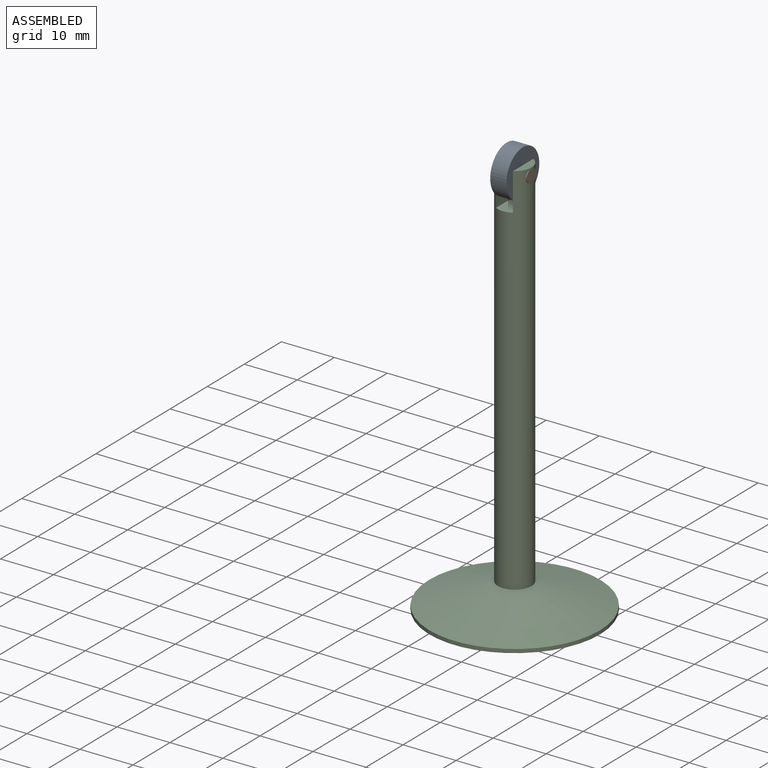
[diagram: assembled view]
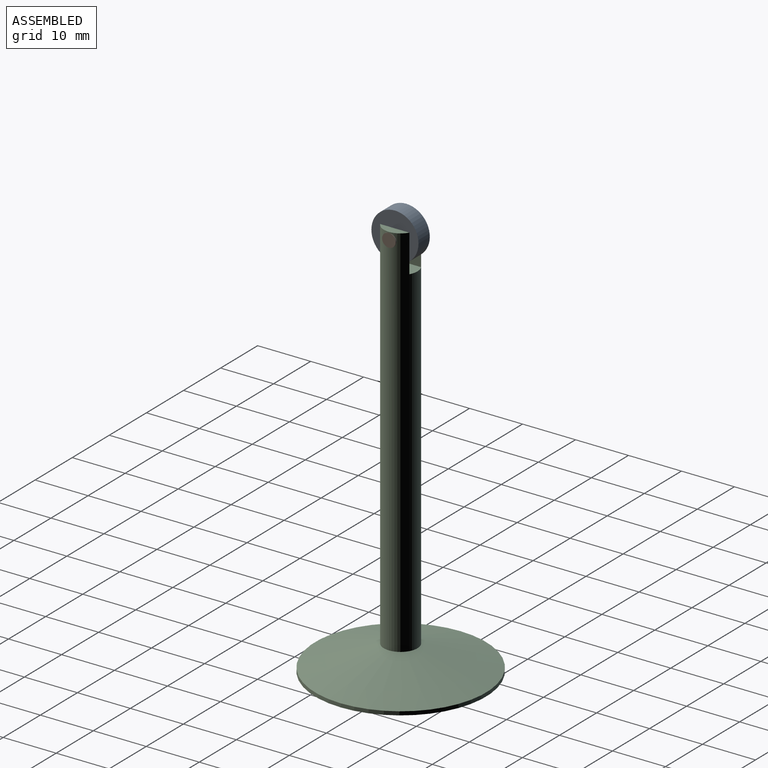
[diagram: assembled view, second angle]
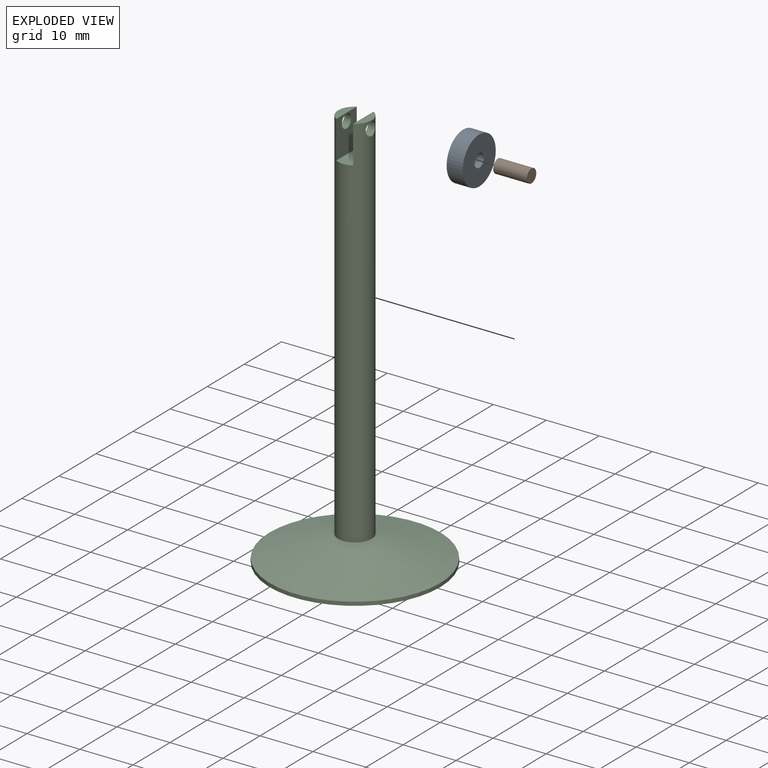
[diagram: exploded view]
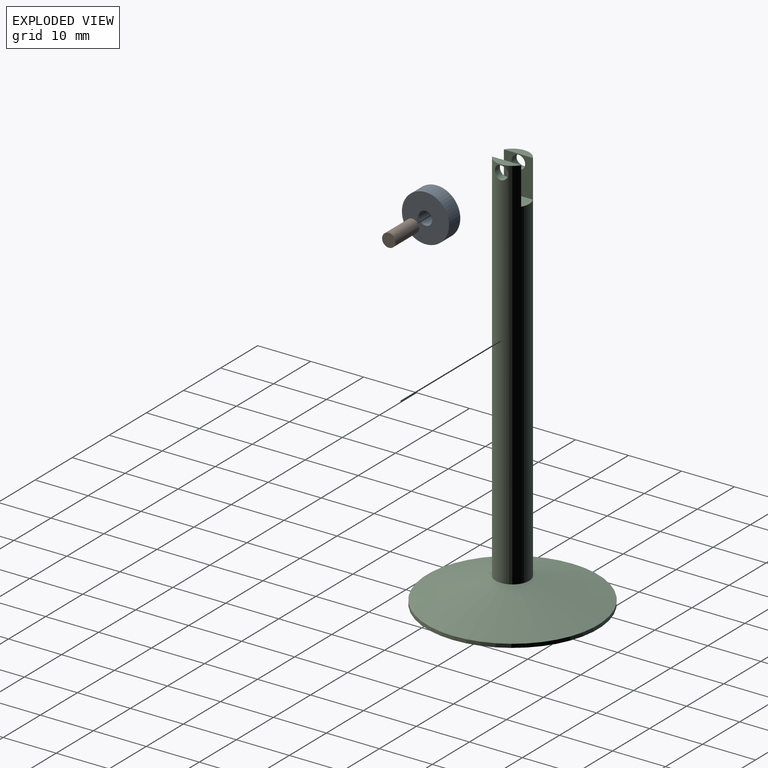
[diagram: exploded view, second angle]
ASSEMBLY  parts=3 mates=2
PART A: 4 faces, bbox 8.9x3x8.9 mm
  f0: cylinder r=4.45mm len=8.89mm, axis (0,1,0), area 85.1mm2, adj f1,f2
  f1: plane 8.89x8.89mm, normal (0,-1,0), area 57mm2, adj f0,f3
  f2: plane 8.89x8.89mm, normal (0,1,0), area 57mm2, adj f0,f3
  f3: cylinder r=1.27mm len=3.05mm, axis (0,-1,0), area 24.3mm2, adj f1,f2
PART B: 3 faces, bbox 2.5x6.4x2.5 mm
  f0: cylinder r=1.27mm len=6.35mm, axis (0,1,0), area 50.7mm2, adj f1,f2
  f1: plane 2.54x2.54mm, normal (0,-1,0), area 5.1mm2, adj f0
  f2: plane 2.54x2.54mm, normal (0,1,0), area 5.1mm2, adj f0
PART C: 11 faces, bbox 32.3x32.3x76.2 mm
  f0: plane 5.5x1.59mm, normal (0,0,1), area 6.2mm2, adj f4,f7
  f1: cylinder r=16.13mm len=32.26mm, axis (0,0,-1), area 70.9mm2, adj f2,f3
  f2: plane 32.26x32.26mm, normal (0,0,-1), area 817.3mm2, adj f1
  f3: cone r=3.17mm half-angle=72.5deg, axis (0,0,-1), area 823.8mm2, adj f1,f4
  f4: cylinder r=3.17mm len=71.41mm, axis (0,0,1), area 1367mm2, adj f0,f3,f5,f6,f7,f8,f9,f10
  f5: plane 5.5x1.59mm, normal (0,0,1), area 6.2mm2, adj f4,f6
  f6: plane 7.11x5.5mm, normal (-1,0,0), area 34mm2, adj f4,f5,f9,f10
  f7: plane 7.11x5.5mm, normal (1,0,0), area 34mm2, adj f0,f4,f8,f10
  f8: cylinder r=1.27mm len=2.54mm, axis (1,0,0), area 11.6mm2, adj f4,f7
  f9: cylinder r=1.27mm len=2.54mm, axis (1,0,0), area 11.6mm2, adj f4,f6
  f10: plane 6.35x3.18mm, normal (0,0,1), area 19.3mm2, adj f4,f6,f7
PLACE A rot(axis=(0,0,-1),90deg) t=(-31.12,-1.84,62.19)mm
PLACE B rot(axis=(-0.58,0.58,0.58),120deg) t=(-35.81,-1.84,62.19)mm
PLACE C t=(-32.65,-1.84,-12.58)mm
MATE revolute A.f0 <-> B.f0  axis (-1,0,0) through (-32.64,-1.84,62.19)mm
MATE fastened B.f0 <-> C.f8  axis (1,0,0) through (-29.46,-1.84,62.19)mm
